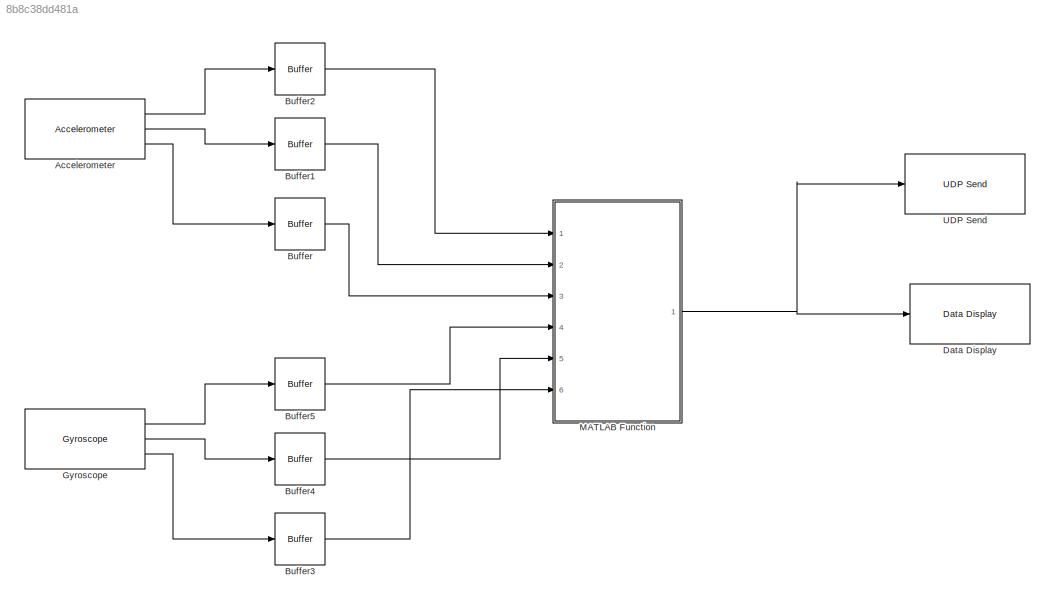
MODEL slx_8b8c38dd481a
KIND model
CONFIG AbsTol = auto
CONFIG EnableMultiTasking = off
CONFIG FixedStep = auto
CONFIG MaxStep = auto
CONFIG MinStep = auto
CONFIG RelTol = 1e-3
CONFIG SampleTimeConstraint = Unconstrained
CONFIG Solver = FixedStepAuto
CONFIG SolverName = FixedStepAuto
CONFIG StartTime = 0.0
CONFIG StopTime = 10.0
BLOCK [Reference] Accelerometer  REF=androidsensorlib/Accelerometer
  Ports = [0, 3]
  SourceBlock = androidsensorlib/Accelerometer
  SourceProductBaseCode = ANDROID
  SourceProductName = Simulink Support Package for Android Devices
  SourceType = codertarget.internal.androidAccelerometer
BLOCK [Buffer] Buffer
  N = 150
  OutputFrames = off
BLOCK [Buffer] Buffer1
  N = 150
  OutputFrames = off
BLOCK [Buffer] Buffer2
  N = 150
  OutputFrames = off
BLOCK [Buffer] Buffer3
  N = 150
  OutputFrames = off
BLOCK [Buffer] Buffer4
  N = 150
  OutputFrames = off
BLOCK [Buffer] Buffer5
  N = 150
  OutputFrames = off
BLOCK [Reference] Data Display  REF=androiduilib/Data Display
  Ports = [1]
  SourceBlock = androiduilib/Data Display
  SourceProductBaseCode = ANDROID
  SourceProductName = Simulink Support Package for Android Devices
  SourceType = codertarget.internal.androidDataDisplay
BLOCK [Reference] Gyroscope  REF=androidsensorlib/Gyroscope
  Ports = [0, 3]
  SourceBlock = androidsensorlib/Gyroscope
  SourceProductBaseCode = ANDROID
  SourceProductName = Simulink Support Package for Android Devices
  SourceType = codertarget.internal.androidGyroscope
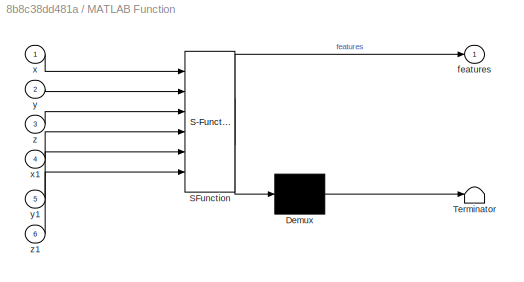
BLOCK [SubSystem] MATLAB Function
  ErrorFcn = Stateflow.Translate.translate
  PermitHierarchicalResolution = ExplicitOnly
  Ports = [6, 1]
  RequestExecContextInheritance = off
  SFBlockType = MATLAB Function
  TreatAsAtomicUnit = on
BLOCK [Demux] MATLAB Function/ Demux 
  Outputs = 1
  Ports = [1, 1]
BLOCK [S-Function] MATLAB Function/ SFunction 
  EnableBusSupport = on
  FunctionName = sf_sfun
  PortCounts = [6 2]
  Ports = [6, 2]
  SFcnIsStateOwnerBlock = off
  SFunctionDeploymentMode = off
  Tag = Stateflow S-Function ftrapp 2
BLOCK [Terminator] MATLAB Function/ Terminator 
BLOCK [Outport] MATLAB Function/features
  IconDisplay = Port number
BLOCK [Inport] MATLAB Function/x
  IconDisplay = Port number
BLOCK [Inport] MATLAB Function/x1
  IconDisplay = Port number
  Port = 4
BLOCK [Inport] MATLAB Function/y
  IconDisplay = Port number
  Port = 2
BLOCK [Inport] MATLAB Function/y1
  IconDisplay = Port number
  Port = 5
BLOCK [Inport] MATLAB Function/z
  IconDisplay = Port number
  Port = 3
BLOCK [Inport] MATLAB Function/z1
  IconDisplay = Port number
  Port = 6
BLOCK [Reference] UDP Send  REF=androidcommunicationlib/UDP Send
  Ports = [1]
  SourceBlock = androidcommunicationlib/UDP Send
  SourceProductBaseCode = ANDROID
  SourceProductName = Simulink Support Package for Android Devices
  SourceType = UDP Send
LINE Accelerometer:1 -> Buffer2:1
LINE Accelerometer:2 -> Buffer1:1
LINE Accelerometer:3 -> Buffer:1
LINE Buffer1:1 -> MATLAB Function:2
LINE Buffer2:1 -> MATLAB Function:1
LINE Buffer3:1 -> MATLAB Function:6
LINE Buffer4:1 -> MATLAB Function:5
LINE Buffer5:1 -> MATLAB Function:4
LINE Buffer:1 -> MATLAB Function:3
LINE Gyroscope:1 -> Buffer5:1
LINE Gyroscope:2 -> Buffer4:1
LINE Gyroscope:3 -> Buffer3:1
NET MATLAB Function:1 -> Data Display:1, UDP Send:1
note: NET lines group one-source signal fan-out (src -> all destinations, sorted); 1:1 wires keep LINE
CHART MATLAB Function states=1 transitions=1
  STATE_LABEL 'eML_blk_kernel()'
  STATE_LABEL "SCRIPT:\nfunction features = ftrextrct(x,y,z,x1,y1,z1)\n \n n = length(x);\n frs = n;\n a0 = [x y z]';\n g0 = [x1 y1 z1]';\n b = (sum(a0'))'/n;\n q1 = atan(b(2)/b(3));\n q2 = atan(b(1)/(b(2)*sin(q1)+b(3)*cos(q1)));\n r1 = [cos(q2) -sin(q1)*sin(q2) -cos(q1)*sin(q2)];\n r2 = [0 cos(q1) -sin(q1)];\n r3 = [sin(q2) sin(q1)*cos(q2) cos(q1)*cos(q2)];\n r = [r1;r2;r3];\n a1 = r*a0;\n g1 = r*g0;\n a1z = sum(a1(3,:))/n;\n a...<+1094ch>"
